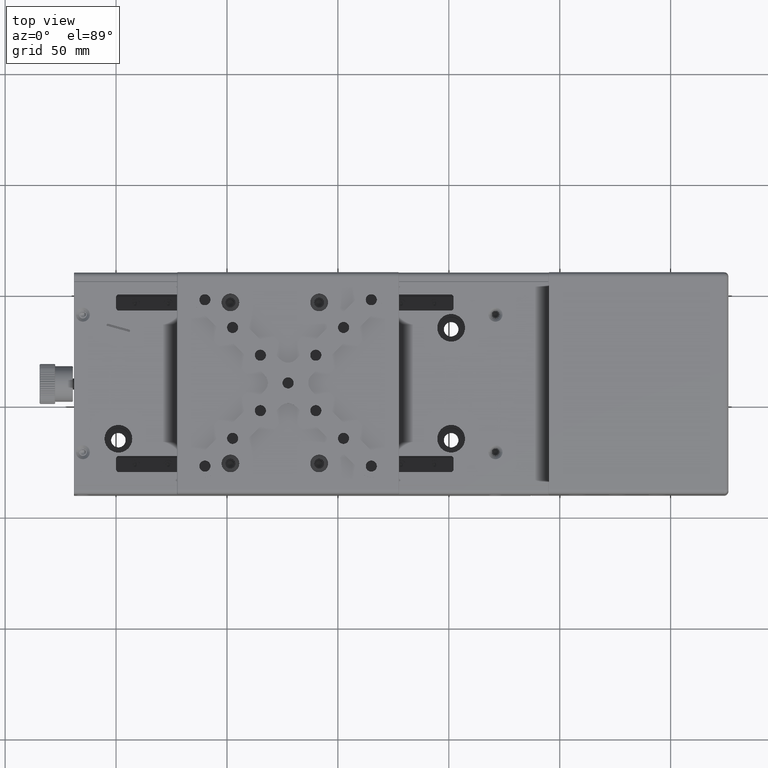
[diagram: clean part render]
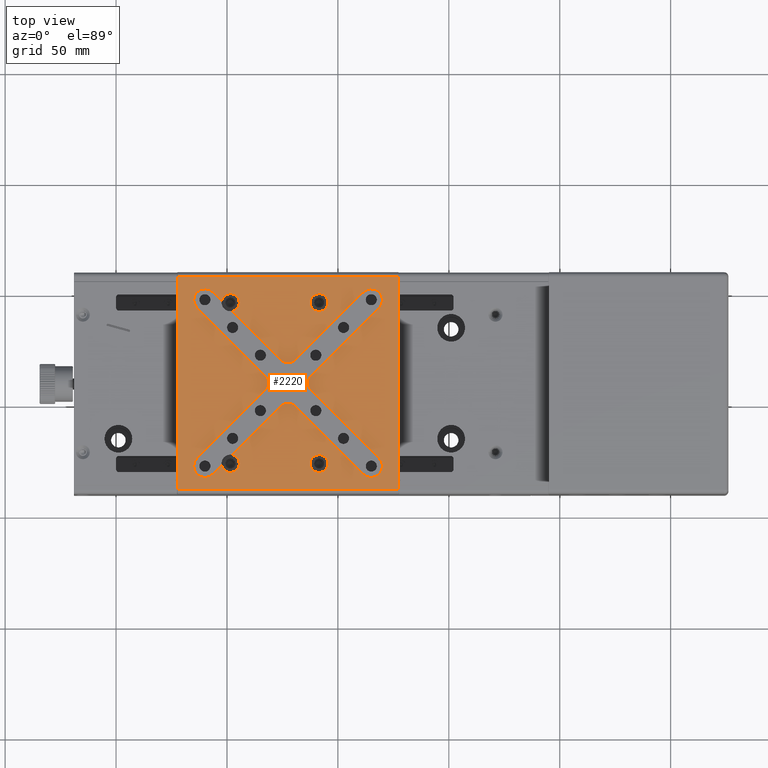
[diagram: same view with one face highlighted and labeled with its STEP entity id]
A machine part, top view. The second image highlights one B-rep face of the part: STEP entity #2220.
In plain terms, the highlighted planar face has unit normal (0, 0, 1).
Its self-contained STEP definition (entity closure, byte-faithful):
#279 = DIRECTION ( 'NONE',  ( 0.7071067811865474617, -0.7071067811865474617, 0.000000000000000000 ) ) ;
#676 = DIRECTION ( 'NONE',  ( 0.7071067811865474617, -0.7071067811865474617, 0.000000000000000000 ) ) ;
#769 = CARTESIAN_POINT ( 'NONE',  ( -106.4331869616556077, -31.04128531850819783, 42.50000000000000000 ) ) ;
#837 = DIRECTION ( 'NONE',  ( 0.000000000000000000, 0.000000000000000000, 1.000000000000000000 ) ) ;
#889 = CARTESIAN_POINT ( 'NONE',  ( -62.46872086758850173, 46.29424858742449800, 42.50000000000000000 ) ) ;
#968 = ORIENTED_EDGE ( 'NONE', *, *, #50042, .T. ) ;
#976 = ORIENTED_EDGE ( 'NONE', *, *, #54618, .T. ) ;
#1312 = AXIS2_PLACEMENT_3D ( 'NONE', #49767, #56516, #32518 ) ;
#1491 = CIRCLE ( 'NONE', #59014, 4.000000000000003553 ) ;
#1866 = CARTESIAN_POINT ( 'NONE',  ( -109.9687208675884023, -27.50575141257545297, 42.50000000000000000 ) ) ;
#2220 = ADVANCED_FACE ( 'NONE', ( #43210, #66097, #60484, #20709 ), #43569, .T. ) ;
#2470 = CIRCLE ( 'NONE', #44390, 3.999999999999996447 ) ;
#2825 = CIRCLE ( 'NONE', #31586, 5.000000000000004441 ) ;
#2847 = CARTESIAN_POINT ( 'NONE',  ( -29.96872086758844844, 47.49424858742450084, 42.50000000000000000 ) ) ;
#2930 = EDGE_CURVE ( 'NONE', #61466, #41071, #20537, .T. ) ;
#3093 = DIRECTION ( 'NONE',  ( 1.000000000000000000, 0.000000000000000000, 0.000000000000000000 ) ) ;
#3407 = VERTEX_POINT ( 'NONE', #72580 ) ;
#3876 = CARTESIAN_POINT ( 'NONE',  ( -22.46872086758844844, -38.00575141257544942, 42.50000000000000000 ) ) ;
#4148 = VERTEX_POINT ( 'NONE', #20552 ) ;
#5031 = EDGE_CURVE ( 'NONE', #51723, #4148, #30337, .T. ) ;
#5052 = VERTEX_POINT ( 'NONE', #769 ) ;
#5163 = VERTEX_POINT ( 'NONE', #65874 ) ;
#5465 = DIRECTION ( 'NONE',  ( 1.000000000000000000, 0.000000000000000000, 0.000000000000000000 ) ) ;
#6100 = VERTEX_POINT ( 'NONE', #8316 ) ;
#6176 = LINE ( 'NONE', #31278, #55445 ) ;
#6207 = VECTOR ( 'NONE', #676, 1000.000000000000114 ) ;
#6316 = CARTESIAN_POINT ( 'NONE',  ( -118.9331869616555934, 63.52978249335729544, 42.50000000000000000 ) ) ;
#6777 = DIRECTION ( 'NONE',  ( 0.000000000000000000, 0.000000000000000000, 1.000000000000000000 ) ) ;
#7216 = EDGE_CURVE ( 'NONE', #72462, #59846, #42618, .T. ) ;
#7590 = EDGE_CURVE ( 'NONE', #51723, #26214, #24368, .T. ) ;
#8279 = ORIENTED_EDGE ( 'NONE', *, *, #42372, .T. ) ;
#8316 = CARTESIAN_POINT ( 'NONE',  ( -122.2687208675883852, 57.99424858742449373, 42.50000000000000000 ) ) ;
#8633 = CARTESIAN_POINT ( 'NONE',  ( -76.00425477352129633, -0.6123531303736939879, 42.50000000000000000 ) ) ;
#10576 = ORIENTED_EDGE ( 'NONE', *, *, #71416, .T. ) ;
#10965 = VERTEX_POINT ( 'NONE', #59585 ) ;
#11141 = EDGE_CURVE ( 'NONE', #3407, #16368, #1491, .T. ) ;
#11268 = VERTEX_POINT ( 'NONE', #24995 ) ;
#11584 = LINE ( 'NONE', #6316, #6207 ) ;
#11826 = EDGE_CURVE ( 'NONE', #33757, #54466, #32283, .T. ) ;
#12197 = LINE ( 'NONE', #23837, #45498 ) ;
#12384 = DIRECTION ( 'NONE',  ( 0.000000000000000000, 0.000000000000000000, 1.000000000000000000 ) ) ;
#12712 = VECTOR ( 'NONE', #43047, 1000.000000000000114 ) ;
#12769 = CARTESIAN_POINT ( 'NONE',  ( -62.46872086758850173, -26.30575141257545013, 42.50000000000000000 ) ) ;
#12949 = ORIENTED_EDGE ( 'NONE', *, *, #11826, .T. ) ;
#13537 = ORIENTED_EDGE ( 'NONE', *, *, #40003, .F. ) ;
#13565 = ORIENTED_EDGE ( 'NONE', *, *, #22247, .F. ) ;
#13791 = CARTESIAN_POINT ( 'NONE',  ( -54.46872086758850173, 46.29424858742449800, 42.50000000000000000 ) ) ;
#14362 = EDGE_CURVE ( 'NONE', #33757, #33585, #52284, .T. ) ;
#14434 = LINE ( 'NONE', #19696, #14544 ) ;
#14544 = VECTOR ( 'NONE', #37318, 1000.000000000000000 ) ;
#14652 = LINE ( 'NONE', #42044, #72986 ) ;
#14719 = AXIS2_PLACEMENT_3D ( 'NONE', #68664, #46159, #63066 ) ;
#14925 = DIRECTION ( 'NONE',  ( -1.387778780781445922E-16, 1.000000000000000000, 0.000000000000000000 ) ) ;
#14949 = CARTESIAN_POINT ( 'NONE',  ( -38.50425477352119685, 51.02978249335730254, 42.50000000000000000 ) ) ;
#15103 = EDGE_LOOP ( 'NONE', ( #16280, #8279 ) ) ;
#15114 = CIRCLE ( 'NONE', #27126, 4.999999999999997335 ) ;
#15132 = AXIS2_PLACEMENT_3D ( 'NONE', #61639, #38030, #66151 ) ;
#15160 = VECTOR ( 'NONE', #23098, 1000.000000000000000 ) ;
#15723 = CIRCLE ( 'NONE', #1312, 3.999999999999996447 ) ;
#15879 = DIRECTION ( 'NONE',  ( 0.000000000000000000, 0.000000000000000000, -1.000000000000000000 ) ) ;
#16236 = AXIS2_PLACEMENT_3D ( 'NONE', #19505, #24023, #58165 ) ;
#16280 = ORIENTED_EDGE ( 'NONE', *, *, #28832, .T. ) ;
#16290 = CIRCLE ( 'NONE', #30647, 5.000000000000004441 ) ;
#16368 = VERTEX_POINT ( 'NONE', #46034 ) ;
#16751 = CARTESIAN_POINT ( 'NONE',  ( -72.46872086758850173, -4.147887036306430630, 42.50000000000000000 ) ) ;
#17342 = ORIENTED_EDGE ( 'NONE', *, *, #11141, .T. ) ;
#18405 = VERTEX_POINT ( 'NONE', #12769 ) ;
#18442 = DIRECTION ( 'NONE',  ( 0.000000000000000000, 0.000000000000000000, 1.000000000000000000 ) ) ;
#18646 = EDGE_CURVE ( 'NONE', #54466, #65759, #15114, .T. ) ;
#18784 = VECTOR ( 'NONE', #66562, 1000.000000000000000 ) ;
#18821 = DIRECTION ( 'NONE',  ( 1.000000000000000000, 0.000000000000000000, 0.000000000000000000 ) ) ;
#19182 = EDGE_CURVE ( 'NONE', #65759, #38043, #54740, .T. ) ;
#19246 = AXIS2_PLACEMENT_3D ( 'NONE', #73117, #21738, #67477 ) ;
#19421 = ORIENTED_EDGE ( 'NONE', *, *, #5031, .F. ) ;
#19505 = CARTESIAN_POINT ( 'NONE',  ( -98.46872086758851594, 46.29424858742449800, 42.50000000000000000 ) ) ;
#19635 = ORIENTED_EDGE ( 'NONE', *, *, #19182, .T. ) ;
#19696 = CARTESIAN_POINT ( 'NONE',  ( -122.2687208675883852, -38.00575141257544942, 42.50000000000000000 ) ) ;
#20326 = CARTESIAN_POINT ( 'NONE',  ( -76.00425477352119685, 20.60085030522274963, 42.50000000000000000 ) ) ;
#20450 = EDGE_CURVE ( 'NONE', #26214, #40368, #49915, .T. ) ;
#20537 = LINE ( 'NONE', #38179, #12712 ) ;
#20544 = CARTESIAN_POINT ( 'NONE',  ( -98.46872086758851594, 46.29424858742449800, 42.50000000000000000 ) ) ;
#20552 = CARTESIAN_POINT ( 'NONE',  ( -113.5042547735212111, 43.95871468149179861, 42.50000000000000000 ) ) ;
#20709 = FACE_OUTER_BOUND ( 'NONE', #53585, .T. ) ;
#20711 = DIRECTION ( 'NONE',  ( 0.000000000000000000, 0.000000000000000000, 1.000000000000000000 ) ) ;
#20806 = VERTEX_POINT ( 'NONE', #49335 ) ;
#20814 = VERTEX_POINT ( 'NONE', #38460 ) ;
#21294 = DIRECTION ( 'NONE',  ( 1.000000000000000000, 0.000000000000000000, 0.000000000000000000 ) ) ;
#21738 = DIRECTION ( 'NONE',  ( 0.000000000000000000, 0.000000000000000000, -1.000000000000000000 ) ) ;
#22008 = DIRECTION ( 'NONE',  ( 1.000000000000000000, 0.000000000000000000, 0.000000000000000000 ) ) ;
#22247 = EDGE_CURVE ( 'NONE', #72462, #37679, #6176, .T. ) ;
#23098 = DIRECTION ( 'NONE',  ( -0.7071067811865480168, -0.7071067811865470176, 0.000000000000000000 ) ) ;
#23836 = CARTESIAN_POINT ( 'NONE',  ( -94.46872086758850173, 46.29424858742449800, 42.50000000000000000 ) ) ;
#23837 = CARTESIAN_POINT ( 'NONE',  ( -68.93318696165580661, 6.458714681491789733, 42.50000000000000000 ) ) ;
#24023 = DIRECTION ( 'NONE',  ( 0.000000000000000000, 0.000000000000000000, -1.000000000000000000 ) ) ;
#24128 = CARTESIAN_POINT ( 'NONE',  ( -58.32658524385750098, 9.994248587424559460, 42.50000000000000000 ) ) ;
#24368 = LINE ( 'NONE', #57052, #28283 ) ;
#24776 = CARTESIAN_POINT ( 'NONE',  ( -109.9687208675884023, 47.49424858742450084, 42.50000000000000000 ) ) ;
#24995 = CARTESIAN_POINT ( 'NONE',  ( -102.4055778054000001, -27.01367616225245172, 42.50000000000000000 ) ) ;
#25648 = DIRECTION ( 'NONE',  ( -0.7071067811865480168, -0.7071067811865470176, 0.000000000000000000 ) ) ;
#26214 = VERTEX_POINT ( 'NONE', #30946 ) ;
#26556 = DIRECTION ( 'NONE',  ( 0.000000000000000000, 0.000000000000000000, -1.000000000000000000 ) ) ;
#26892 = DIRECTION ( 'NONE',  ( 0.000000000000000000, 0.000000000000000000, -1.000000000000000000 ) ) ;
#27126 = AXIS2_PLACEMENT_3D ( 'NONE', #56162, #44875, #22008 ) ;
#27715 = LINE ( 'NONE', #39697, #40982 ) ;
#28140 = ORIENTED_EDGE ( 'NONE', *, *, #32303, .T. ) ;
#28254 = ORIENTED_EDGE ( 'NONE', *, *, #7590, .T. ) ;
#28283 = VECTOR ( 'NONE', #74280, 1000.000000000000114 ) ;
#28510 = CARTESIAN_POINT ( 'NONE',  ( -31.43318696165574977, -23.97021750664270101, 42.50000000000000000 ) ) ;
#28832 = EDGE_CURVE ( 'NONE', #41770, #18405, #2470, .T. ) ;
#29123 = CARTESIAN_POINT ( 'NONE',  ( -98.46872086758840226, -26.30575141257545013, 42.50000000000000000 ) ) ;
#29724 = CARTESIAN_POINT ( 'NONE',  ( -86.61085649131949538, 9.994248587424518604, 42.50000000000000000 ) ) ;
#30301 = VECTOR ( 'NONE', #44989, 1000.000000000000000 ) ;
#30337 = CIRCLE ( 'NONE', #53080, 5.000000000000004441 ) ;
#30508 = CIRCLE ( 'NONE', #34099, 5.000000000000000888 ) ;
#30647 = AXIS2_PLACEMENT_3D ( 'NONE', #65995, #60764, #54757 ) ;
#30693 = CARTESIAN_POINT ( 'NONE',  ( -122.4687208675883880, 57.99424858742449373, 42.50000000000000000 ) ) ;
#30946 = CARTESIAN_POINT ( 'NONE',  ( -102.4055778054000001, 47.00217333710159551, 42.50000000000000000 ) ) ;
#31042 = LINE ( 'NONE', #53907, #15160 ) ;
#31278 = CARTESIAN_POINT ( 'NONE',  ( -76.00425477352129633, 13.52978249335725991, 42.50000000000000000 ) ) ;
#31432 = CARTESIAN_POINT ( 'NONE',  ( -58.46872086758849463, 46.29424858742449800, 42.50000000000000000 ) ) ;
#31540 = ORIENTED_EDGE ( 'NONE', *, *, #61814, .F. ) ;
#31586 = AXIS2_PLACEMENT_3D ( 'NONE', #16751, #51983, #39642 ) ;
#32159 = DIRECTION ( 'NONE',  ( 1.000000000000000000, 0.000000000000000000, 0.000000000000000000 ) ) ;
#32283 = LINE ( 'NONE', #50617, #30301 ) ;
#32303 = EDGE_CURVE ( 'NONE', #40368, #61466, #38997, .T. ) ;
#32368 = EDGE_CURVE ( 'NONE', #37679, #5052, #58116, .T. ) ;
#32518 = DIRECTION ( 'NONE',  ( 1.000000000000000000, 0.000000000000000000, 0.000000000000000000 ) ) ;
#32564 = EDGE_CURVE ( 'NONE', #41071, #34922, #16290, .T. ) ;
#32766 = CIRCLE ( 'NONE', #43551, 3.999999999999996447 ) ;
#32810 = CARTESIAN_POINT ( 'NONE',  ( -76.00425477352129633, 13.52978249335725991, 42.50000000000000000 ) ) ;
#32813 = ORIENTED_EDGE ( 'NONE', *, *, #33308, .T. ) ;
#33258 = CARTESIAN_POINT ( 'NONE',  ( -61.86211914979029558, 13.52978249335730077, 42.50000000000000000 ) ) ;
#33308 = EDGE_CURVE ( 'NONE', #10965, #5163, #71935, .T. ) ;
#33585 = VERTEX_POINT ( 'NONE', #2847 ) ;
#33650 = DIRECTION ( 'NONE',  ( 1.000000000000000000, 1.734723475976805517E-15, 0.000000000000000000 ) ) ;
#33757 = VERTEX_POINT ( 'NONE', #55727 ) ;
#34099 = AXIS2_PLACEMENT_3D ( 'NONE', #45111, #72502, #50365 ) ;
#34878 = VERTEX_POINT ( 'NONE', #56120 ) ;
#34922 = VERTEX_POINT ( 'NONE', #71870 ) ;
#35261 = DIRECTION ( 'NONE',  ( 1.000000000000000000, 0.000000000000000000, 0.000000000000000000 ) ) ;
#35299 = ORIENTED_EDGE ( 'NONE', *, *, #69745, .T. ) ;
#35565 = ORIENTED_EDGE ( 'NONE', *, *, #2930, .T. ) ;
#35745 = DIRECTION ( 'NONE',  ( 1.000000000000000000, 0.000000000000000000, 0.000000000000000000 ) ) ;
#36150 = VERTEX_POINT ( 'NONE', #14949 ) ;
#36748 = AXIS2_PLACEMENT_3D ( 'NONE', #24128, #57182, #35745 ) ;
#37318 = DIRECTION ( 'NONE',  ( 1.224646799147351975E-16, -1.000000000000000000, 0.000000000000000000 ) ) ;
#37679 = VERTEX_POINT ( 'NONE', #45708 ) ;
#38030 = DIRECTION ( 'NONE',  ( 0.000000000000000000, 0.000000000000000000, 1.000000000000000000 ) ) ;
#38043 = VERTEX_POINT ( 'NONE', #71574 ) ;
#38079 = ORIENTED_EDGE ( 'NONE', *, *, #71146, .T. ) ;
#38179 = CARTESIAN_POINT ( 'NONE',  ( -118.9331869616555934, 63.52978249335729544, 42.50000000000000000 ) ) ;
#38460 = CARTESIAN_POINT ( 'NONE',  ( -68.93318696165580661, -0.6123531303737008713, 42.50000000000000000 ) ) ;
#38997 = CIRCLE ( 'NONE', #16236, 4.000000000000003553 ) ;
#39642 = DIRECTION ( 'NONE',  ( 1.000000000000000000, 0.000000000000000000, 0.000000000000000000 ) ) ;
#39697 = CARTESIAN_POINT ( 'NONE',  ( -126.0042547735211969, 56.45871468149179861, 42.50000000000000000 ) ) ;
#39987 = ORIENTED_EDGE ( 'NONE', *, *, #7216, .T. ) ;
#40003 = EDGE_CURVE ( 'NONE', #20814, #55249, #14652, .T. ) ;
#40368 = VERTEX_POINT ( 'NONE', #23836 ) ;
#40573 = ORIENTED_EDGE ( 'NONE', *, *, #72107, .F. ) ;
#40982 = VECTOR ( 'NONE', #279, 1000.000000000000114 ) ;
#41071 = VERTEX_POINT ( 'NONE', #20326 ) ;
#41500 = AXIS2_PLACEMENT_3D ( 'NONE', #20544, #26556, #33650 ) ;
#41518 = EDGE_CURVE ( 'NONE', #60480, #69872, #15723, .T. ) ;
#41770 = VERTEX_POINT ( 'NONE', #71067 ) ;
#41829 = EDGE_CURVE ( 'NONE', #6100, #34878, #14434, .T. ) ;
#42044 = CARTESIAN_POINT ( 'NONE',  ( -126.0042547735211969, 56.45871468149179861, 42.50000000000000000 ) ) ;
#42372 = EDGE_CURVE ( 'NONE', #18405, #41770, #58786, .T. ) ;
#42618 = CIRCLE ( 'NONE', #71373, 5.000000000000004441 ) ;
#43047 = DIRECTION ( 'NONE',  ( 0.7071067811865474617, -0.7071067811865474617, 0.000000000000000000 ) ) ;
#43210 = FACE_BOUND ( 'NONE', #15103, .T. ) ;
#43551 = AXIS2_PLACEMENT_3D ( 'NONE', #31432, #67033, #21294 ) ;
#43569 = PLANE ( 'NONE',  #14719 ) ;
#44011 = AXIS2_PLACEMENT_3D ( 'NONE', #54478, #20711, #3093 ) ;
#44043 = ORIENTED_EDGE ( 'NONE', *, *, #18646, .T. ) ;
#44390 = AXIS2_PLACEMENT_3D ( 'NONE', #67266, #15879, #61649 ) ;
#44689 = VECTOR ( 'NONE', #58471, 1000.000000000000000 ) ;
#44712 = ORIENTED_EDGE ( 'NONE', *, *, #32564, .T. ) ;
#44875 = DIRECTION ( 'NONE',  ( 0.000000000000000000, 0.000000000000000000, 1.000000000000000000 ) ) ;
#44886 = DIRECTION ( 'NONE',  ( 1.000000000000000000, 0.000000000000000000, 0.000000000000000000 ) ) ;
#44989 = DIRECTION ( 'NONE',  ( -0.7071067811865480168, -0.7071067811865470176, 0.000000000000000000 ) ) ;
#45111 = CARTESIAN_POINT ( 'NONE',  ( -34.96872086758844489, -27.50575141257545297, 42.50000000000000000 ) ) ;
#45498 = VECTOR ( 'NONE', #63952, 1000.000000000000000 ) ;
#45708 = CARTESIAN_POINT ( 'NONE',  ( -113.5042547735212111, -23.97021750664270101, 42.50000000000000000 ) ) ;
#46034 = CARTESIAN_POINT ( 'NONE',  ( -94.46872086758850173, -26.30575141257545013, 42.50000000000000000 ) ) ;
#46060 = VECTOR ( 'NONE', #60907, 1000.000000000000000 ) ;
#46159 = DIRECTION ( 'NONE',  ( 0.000000000000000000, 0.000000000000000000, 1.000000000000000000 ) ) ;
#46305 = AXIS2_PLACEMENT_3D ( 'NONE', #71152, #26892, #32159 ) ;
#46946 = CARTESIAN_POINT ( 'NONE',  ( -34.96872086758844489, 47.49424858742450084, 42.50000000000000000 ) ) ;
#49160 = DIRECTION ( 'NONE',  ( 0.7071067811865474617, -0.7071067811865474617, 0.000000000000000000 ) ) ;
#49335 = CARTESIAN_POINT ( 'NONE',  ( -29.96872086758844844, -27.50575141257545297, 42.50000000000000000 ) ) ;
#49767 = CARTESIAN_POINT ( 'NONE',  ( -58.46872086758849463, 46.29424858742449800, 42.50000000000000000 ) ) ;
#49784 = CARTESIAN_POINT ( 'NONE',  ( -83.07532258538670078, 13.52978249335725991, 42.50000000000000000 ) ) ;
#49915 = CIRCLE ( 'NONE', #41500, 4.000000000000003553 ) ;
#49996 = EDGE_CURVE ( 'NONE', #16368, #11268, #51086, .T. ) ;
#50000 = LINE ( 'NONE', #3876, #46060 ) ;
#50009 = CARTESIAN_POINT ( 'NONE',  ( -63.32658524385749388, 9.994248587424559460, 42.50000000000000000 ) ) ;
#50042 = EDGE_CURVE ( 'NONE', #61041, #3407, #31042, .T. ) ;
#50365 = DIRECTION ( 'NONE',  ( 1.000000000000000000, 0.000000000000000000, 0.000000000000000000 ) ) ;
#50617 = CARTESIAN_POINT ( 'NONE',  ( -68.93318696165580661, 6.458714681491789733, 42.50000000000000000 ) ) ;
#50836 = ORIENTED_EDGE ( 'NONE', *, *, #61480, .F. ) ;
#51086 = CIRCLE ( 'NONE', #46305, 4.000000000000003553 ) ;
#51723 = VERTEX_POINT ( 'NONE', #64613 ) ;
#51983 = DIRECTION ( 'NONE',  ( 0.000000000000000000, 0.000000000000000000, 1.000000000000000000 ) ) ;
#52284 = CIRCLE ( 'NONE', #15132, 5.000000000000000888 ) ;
#53080 = AXIS2_PLACEMENT_3D ( 'NONE', #24776, #12384, #69754 ) ;
#53251 = EDGE_CURVE ( 'NONE', #33585, #36150, #60946, .T. ) ;
#53585 = EDGE_LOOP ( 'NONE', ( #38079, #57123, #68164, #32813 ) ) ;
#53907 = CARTESIAN_POINT ( 'NONE',  ( -68.93318696165580661, 6.458714681491789733, 42.50000000000000000 ) ) ;
#54466 = VERTEX_POINT ( 'NONE', #33258 ) ;
#54478 = CARTESIAN_POINT ( 'NONE',  ( -34.96872086758844489, -27.50575141257545297, 42.50000000000000000 ) ) ;
#54618 = EDGE_CURVE ( 'NONE', #11268, #5052, #12197, .T. ) ;
#54740 = CIRCLE ( 'NONE', #36748, 4.999999999999997335 ) ;
#54757 = DIRECTION ( 'NONE',  ( 1.000000000000000000, 0.000000000000000000, 0.000000000000000000 ) ) ;
#54957 = CARTESIAN_POINT ( 'NONE',  ( -97.76079611791151081, 42.35739164961300673, 42.50000000000000000 ) ) ;
#55249 = VERTEX_POINT ( 'NONE', #65719 ) ;
#55445 = VECTOR ( 'NONE', #25648, 1000.000000000000000 ) ;
#55727 = CARTESIAN_POINT ( 'NONE',  ( -31.43318696165574977, 43.95871468149179861, 42.50000000000000000 ) ) ;
#56120 = CARTESIAN_POINT ( 'NONE',  ( -122.2687208675883852, -38.00575141257544942, 42.50000000000000000 ) ) ;
#56162 = CARTESIAN_POINT ( 'NONE',  ( -58.32658524385750098, 9.994248587424559460, 42.50000000000000000 ) ) ;
#56516 = DIRECTION ( 'NONE',  ( 0.000000000000000000, 0.000000000000000000, -1.000000000000000000 ) ) ;
#57052 = CARTESIAN_POINT ( 'NONE',  ( -118.9331869616555934, 63.52978249335729544, 42.50000000000000000 ) ) ;
#57123 = ORIENTED_EDGE ( 'NONE', *, *, #41829, .T. ) ;
#57182 = DIRECTION ( 'NONE',  ( 0.000000000000000000, 0.000000000000000000, 1.000000000000000000 ) ) ;
#57357 = AXIS2_PLACEMENT_3D ( 'NONE', #46946, #837, #5465 ) ;
#58116 = CIRCLE ( 'NONE', #62924, 5.000000000000004441 ) ;
#58165 = DIRECTION ( 'NONE',  ( 1.000000000000000000, 0.000000000000000000, 0.000000000000000000 ) ) ;
#58201 = EDGE_LOOP ( 'NONE', ( #35565, #44712, #50836, #71426, #71821, #12949, #44043, #19635, #35299, #31540, #40573, #13537, #10576, #968, #17342, #69370, #976, #64067, #13565, #39987, #64182, #19421, #28254, #69922, #28140 ) ) ;
#58471 = DIRECTION ( 'NONE',  ( -1.000000000000000000, 0.000000000000000000, 0.000000000000000000 ) ) ;
#58786 = CIRCLE ( 'NONE', #19246, 3.999999999999996447 ) ;
#59014 = AXIS2_PLACEMENT_3D ( 'NONE', #29123, #63258, #44886 ) ;
#59585 = CARTESIAN_POINT ( 'NONE',  ( -22.66872086758850102, -38.00575141257544942, 42.50000000000000000 ) ) ;
#59846 = VERTEX_POINT ( 'NONE', #49784 ) ;
#60480 = VERTEX_POINT ( 'NONE', #889 ) ;
#60484 = FACE_BOUND ( 'NONE', #64026, .T. ) ;
#60639 = VECTOR ( 'NONE', #14925, 1000.000000000000000 ) ;
#60764 = DIRECTION ( 'NONE',  ( 0.000000000000000000, 0.000000000000000000, 1.000000000000000000 ) ) ;
#60907 = DIRECTION ( 'NONE',  ( 1.000000000000000000, 0.000000000000000000, 0.000000000000000000 ) ) ;
#60946 = CIRCLE ( 'NONE', #57357, 5.000000000000000888 ) ;
#61041 = VERTEX_POINT ( 'NONE', #8633 ) ;
#61067 = CARTESIAN_POINT ( 'NONE',  ( -22.66872086758850102, 57.99424858742449373, 42.50000000000000000 ) ) ;
#61466 = VERTEX_POINT ( 'NONE', #54957 ) ;
#61480 = EDGE_CURVE ( 'NONE', #36150, #34922, #67669, .T. ) ;
#61639 = CARTESIAN_POINT ( 'NONE',  ( -34.96872086758844489, 47.49424858742450084, 42.50000000000000000 ) ) ;
#61649 = DIRECTION ( 'NONE',  ( 1.000000000000000000, 0.000000000000000000, 0.000000000000000000 ) ) ;
#61814 = EDGE_CURVE ( 'NONE', #20806, #63278, #65544, .T. ) ;
#62924 = AXIS2_PLACEMENT_3D ( 'NONE', #1866, #6777, #35261 ) ;
#63058 = ORIENTED_EDGE ( 'NONE', *, *, #71232, .T. ) ;
#63066 = DIRECTION ( 'NONE',  ( 1.000000000000000000, 0.000000000000000000, 0.000000000000000000 ) ) ;
#63258 = DIRECTION ( 'NONE',  ( 0.000000000000000000, 0.000000000000000000, -1.000000000000000000 ) ) ;
#63278 = VERTEX_POINT ( 'NONE', #28510 ) ;
#63952 = DIRECTION ( 'NONE',  ( -0.7071067811865480168, -0.7071067811865470176, 0.000000000000000000 ) ) ;
#64026 = EDGE_LOOP ( 'NONE', ( #63058, #67169 ) ) ;
#64067 = ORIENTED_EDGE ( 'NONE', *, *, #32368, .F. ) ;
#64182 = ORIENTED_EDGE ( 'NONE', *, *, #67920, .F. ) ;
#64613 = CARTESIAN_POINT ( 'NONE',  ( -106.4331869616556077, 51.02978249335730254, 42.50000000000000000 ) ) ;
#65544 = CIRCLE ( 'NONE', #44011, 5.000000000000000888 ) ;
#65719 = CARTESIAN_POINT ( 'NONE',  ( -38.50425477352124659, -31.04128531850825112, 42.50000000000000000 ) ) ;
#65759 = VERTEX_POINT ( 'NONE', #50009 ) ;
#65874 = CARTESIAN_POINT ( 'NONE',  ( -22.66872086758850102, 57.99424858742449373, 42.50000000000000000 ) ) ;
#65995 = CARTESIAN_POINT ( 'NONE',  ( -72.46872086758850173, 24.13638421115549804, 42.50000000000000000 ) ) ;
#66097 = FACE_BOUND ( 'NONE', #58201, .T. ) ;
#66151 = DIRECTION ( 'NONE',  ( 1.000000000000000000, 0.000000000000000000, 0.000000000000000000 ) ) ;
#66562 = DIRECTION ( 'NONE',  ( -0.7071067811865480168, -0.7071067811865470176, 0.000000000000000000 ) ) ;
#67033 = DIRECTION ( 'NONE',  ( 0.000000000000000000, 0.000000000000000000, -1.000000000000000000 ) ) ;
#67169 = ORIENTED_EDGE ( 'NONE', *, *, #41518, .T. ) ;
#67266 = CARTESIAN_POINT ( 'NONE',  ( -58.46872086758849463, -26.30575141257545013, 42.50000000000000000 ) ) ;
#67477 = DIRECTION ( 'NONE',  ( 1.000000000000000000, 0.000000000000000000, 0.000000000000000000 ) ) ;
#67669 = LINE ( 'NONE', #32810, #18784 ) ;
#67920 = EDGE_CURVE ( 'NONE', #4148, #59846, #27715, .T. ) ;
#68164 = ORIENTED_EDGE ( 'NONE', *, *, #72104, .T. ) ;
#68664 = CARTESIAN_POINT ( 'NONE',  ( -72.46872086758850173, 9.994248587424539920, 42.50000000000000000 ) ) ;
#69370 = ORIENTED_EDGE ( 'NONE', *, *, #49996, .T. ) ;
#69675 = LINE ( 'NONE', #30693, #44689 ) ;
#69745 = EDGE_CURVE ( 'NONE', #38043, #63278, #11584, .T. ) ;
#69754 = DIRECTION ( 'NONE',  ( 1.000000000000000000, 0.000000000000000000, 0.000000000000000000 ) ) ;
#69872 = VERTEX_POINT ( 'NONE', #13791 ) ;
#69922 = ORIENTED_EDGE ( 'NONE', *, *, #20450, .T. ) ;
#71067 = CARTESIAN_POINT ( 'NONE',  ( -54.46872086758850173, -26.30575141257545013, 42.50000000000000000 ) ) ;
#71146 = EDGE_CURVE ( 'NONE', #5163, #6100, #69675, .T. ) ;
#71152 = CARTESIAN_POINT ( 'NONE',  ( -98.46872086758840226, -26.30575141257545013, 42.50000000000000000 ) ) ;
#71232 = EDGE_CURVE ( 'NONE', #69872, #60480, #32766, .T. ) ;
#71314 = CARTESIAN_POINT ( 'NONE',  ( -83.07532258538670078, 6.458714681491789733, 42.50000000000000000 ) ) ;
#71373 = AXIS2_PLACEMENT_3D ( 'NONE', #29724, #18442, #18821 ) ;
#71416 = EDGE_CURVE ( 'NONE', #20814, #61041, #2825, .T. ) ;
#71426 = ORIENTED_EDGE ( 'NONE', *, *, #53251, .F. ) ;
#71574 = CARTESIAN_POINT ( 'NONE',  ( -61.86211914979029558, 6.458714681491819931, 42.50000000000000000 ) ) ;
#71821 = ORIENTED_EDGE ( 'NONE', *, *, #14362, .F. ) ;
#71870 = CARTESIAN_POINT ( 'NONE',  ( -68.93318696165569293, 20.60085030522274963, 42.50000000000000000 ) ) ;
#71935 = LINE ( 'NONE', #61067, #60639 ) ;
#72104 = EDGE_CURVE ( 'NONE', #34878, #10965, #50000, .T. ) ;
#72107 = EDGE_CURVE ( 'NONE', #55249, #20806, #30508, .T. ) ;
#72462 = VERTEX_POINT ( 'NONE', #71314 ) ;
#72502 = DIRECTION ( 'NONE',  ( 0.000000000000000000, 0.000000000000000000, 1.000000000000000000 ) ) ;
#72580 = CARTESIAN_POINT ( 'NONE',  ( -97.76079611791151081, -22.36889447476394821, 42.50000000000000000 ) ) ;
#72986 = VECTOR ( 'NONE', #49160, 1000.000000000000114 ) ;
#73117 = CARTESIAN_POINT ( 'NONE',  ( -58.46872086758849463, -26.30575141257545013, 42.50000000000000000 ) ) ;
#74280 = DIRECTION ( 'NONE',  ( 0.7071067811865474617, -0.7071067811865474617, 0.000000000000000000 ) ) ;